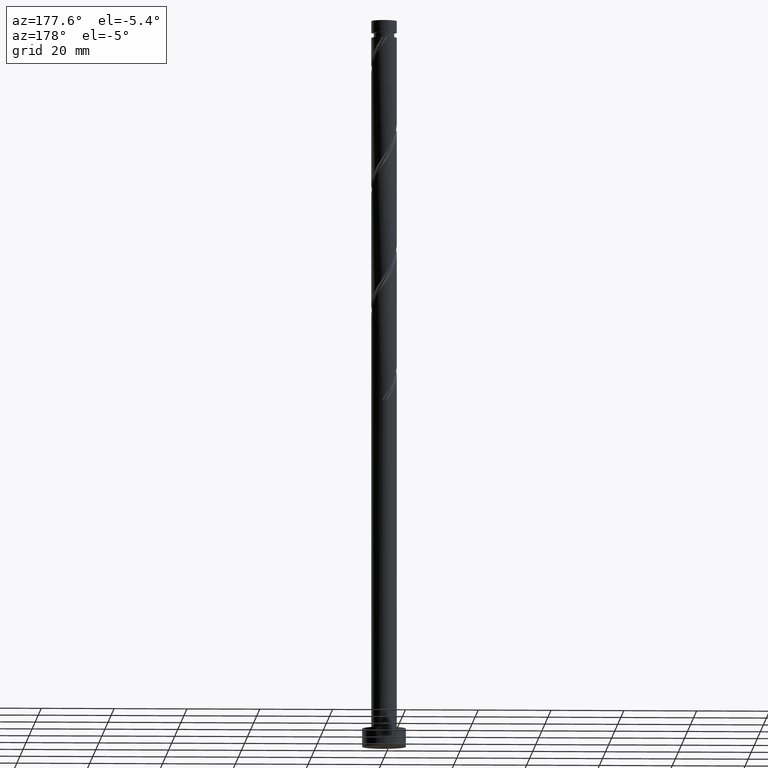
[diagram: clean part render]
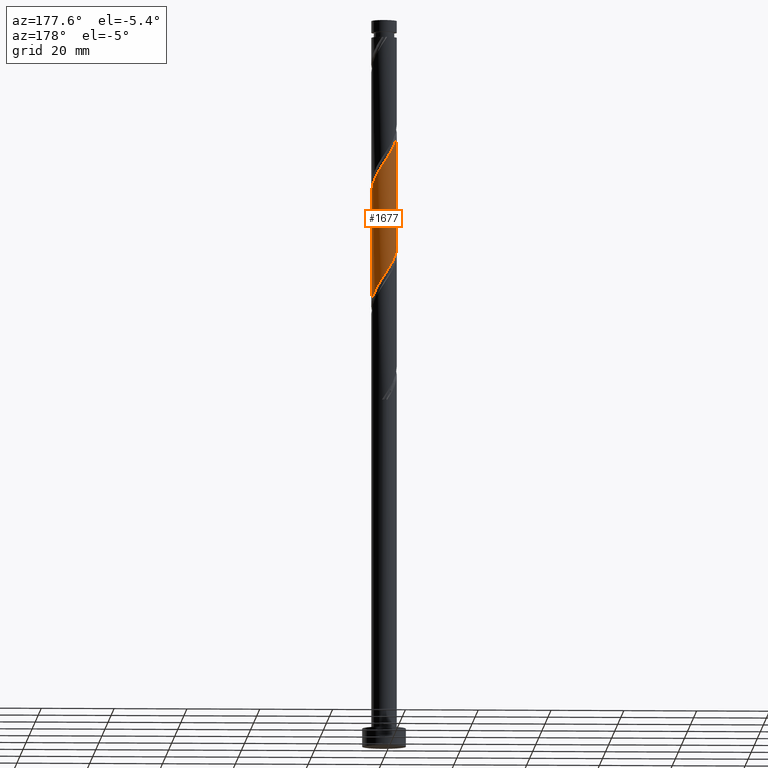
[diagram: same view with one face highlighted and labeled with its STEP entity id]
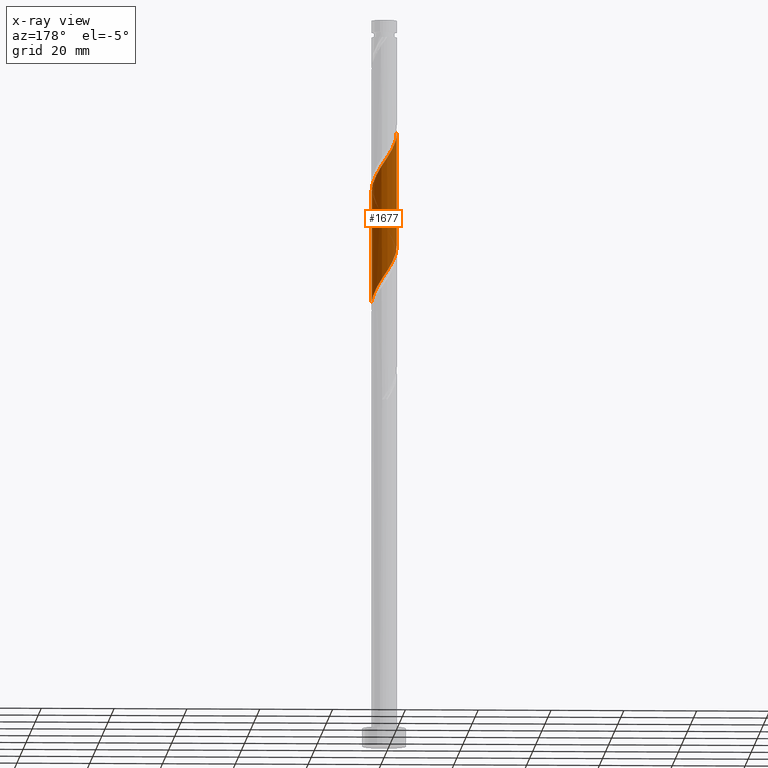
[diagram: x-ray of the same camera — body ghosted, the highlighted face saturated]
A machine part, auxiliary view. The second image highlights one B-rep face of the part: STEP entity #1677.
The next image is the same camera in x-ray: the body ghosted, the highlighted face saturated — about 0% of this face is hidden behind the body in this view.
In plain terms, the highlighted cylindrical surface (edge-blend (fillet) strip) has radius 3.5 mm, axis along (-0, -0, -1).
Its self-contained STEP definition (entity closure, byte-faithful):
#8 = CARTESIAN_POINT ( 'NONE',  ( 1.932882604688401118, 2.917869914251323138, 157.8863959641132340 ) ) ;
#43 = EDGE_CURVE ( 'NONE', #1611, #297, #1145, .T. ) ;
#55 = CARTESIAN_POINT ( 'NONE',  ( 3.500000000000000444, 4.516042901973274995E-15, 121.4499626193233155 ) ) ;
#120 = CARTESIAN_POINT ( 'NONE',  ( 3.500000000000004441, 5.532900244139408950E-16, 152.6561626422365237 ) ) ;
#125 = CARTESIAN_POINT ( 'NONE',  ( -2.622221531993306876, 2.318179077886495243, 134.2752848530021765 ) ) ;
#168 = CARTESIAN_POINT ( 'NONE',  ( 3.493390773024163121, 0.2149904810675252742, 121.7752848530021197 ) ) ;
#233 = EDGE_CURVE ( 'NONE', #572, #297, #430, .T. ) ;
#236 = CYLINDRICAL_SURFACE ( 'NONE', #1384, 3.500000000000000000 ) ;
#257 = CARTESIAN_POINT ( 'NONE',  ( -2.318179077886497019, 2.622221531993310872, 164.8308404085577479 ) ) ;
#266 = CARTESIAN_POINT ( 'NONE',  ( 2.927415597451915374, 1.972957063972127667, 155.8030626307798912 ) ) ;
#270 = ORIENTED_EDGE ( 'NONE', *, *, #1411, .F. ) ;
#294 = CARTESIAN_POINT ( 'NONE',  ( -3.493390773024166229, 0.2149904810675284106, 168.9975070752244051 ) ) ;
#297 = VERTEX_POINT ( 'NONE', #574 ) ;
#378 = DIRECTION ( 'NONE',  ( -0.000000000000000000, -0.000000000000000000, -1.000000000000000000 ) ) ;
#410 = CARTESIAN_POINT ( 'NONE',  ( -3.500000000000004441, -1.600054935467342436E-15, 169.3228293089032377 ) ) ;
#422 = CARTESIAN_POINT ( 'NONE',  ( -3.465086739234110702, 0.6749041013849228499, 168.3030626307798912 ) ) ;
#430 =( BOUNDED_CURVE ( )  B_SPLINE_CURVE ( 2, ( #826, #673, #1188, #1059, #1457, #1066, #125, #1740, #545, #1474, #1119, #1638, #970, #439, #750, #997, #585, #1107, #856, #1270, #458, #1501, #865, #1126, #168, #1667, #55 ),
 .UNSPECIFIED., .F., .T. ) 
 B_SPLINE_CURVE_WITH_KNOTS ( ( 3, 2, 2, 2, 2, 2, 2, 2, 2, 2, 2, 2, 2, 3 ),
 ( 0.6795317669814465722, 0.6875000000000000000, 0.6979166666666666297, 0.7083333333333333703, 0.7187500000000000000, 0.7291666666666666297, 0.7395833333333333703, 0.7500000000000000000, 0.7604166666666666297, 0.7708333333333333703, 0.7812500000000000000, 0.7916666666666666297, 0.8020833333333333703, 0.8045317669814463502 ),
 .UNSPECIFIED. ) 
 CURVE ( )  GEOMETRIC_REPRESENTATION_ITEM ( )  RATIONAL_B_SPLINE_CURVE ( ( 0.9062941362546423907, 0.9031415850403470280, 0.9090909090909222723, 0.9013135103398406400, 0.9090909090909222723, 0.9013135103398406400, 0.9090909090909222723, 0.9013135103398406400, 0.9090909090909222723, 0.9013135103398406400, 0.9090909090909222723, 0.9013135103398406400, 0.9090909090909222723, 0.9013135103398406400, 0.9090909090909222723, 0.9013135103398406400, 0.9090909090909222723, 0.9013135103398406400, 0.9090909090909222723, 0.9013135103398406400, 0.9090909090909222723, 0.9013135103398406400, 0.9090909090909222723, 0.9013135103398406400, 0.9090909090909222723, 0.9072628343904159953, 0.9062941362546426127 ) ) 
 REPRESENTATION_ITEM ( '' )  );
#439 = CARTESIAN_POINT ( 'NONE',  ( 0.2449231392498675275, 3.521694806814218204, 129.4141737418910054 ) ) ;
#443 = CARTESIAN_POINT ( 'NONE',  ( 1.111820922113509580, 3.318712737967945969, 159.2752848530021765 ) ) ;
#458 = CARTESIAN_POINT ( 'NONE',  ( 2.917869914251320029, 1.932882604688396011, 124.5530626307799196 ) ) ;
#466 = VERTEX_POINT ( 'NONE', #1019 ) ;
#493 = ORIENTED_EDGE ( 'NONE', *, *, #1173, .F. ) ;
#540 = CARTESIAN_POINT ( 'NONE',  ( 1.548737742842093867, 3.172338736701780793, 158.5808404085576626 ) ) ;
#545 = CARTESIAN_POINT ( 'NONE',  ( -1.932882604688397121, 2.917869914251320029, 132.8863959641132624 ) ) ;
#562 = CARTESIAN_POINT ( 'NONE',  ( -2.663401091800863263, 2.317027466534706370, 165.5252848530021481 ) ) ;
#572 = VERTEX_POINT ( 'NONE', #1510 ) ;
#574 = CARTESIAN_POINT ( 'NONE',  ( 3.500000000000000000, 4.516042901973274995E-15, 121.4499626193233155 ) ) ;
#585 = CARTESIAN_POINT ( 'NONE',  ( 1.560508168335767332, 3.132860395318844748, 127.3308404085577195 ) ) ;
#605 = DIRECTION ( 'NONE',  ( -0.000000000000000000, -0.000000000000000000, -1.000000000000000000 ) ) ;
#664 = CARTESIAN_POINT ( 'NONE',  ( -3.500000000000000000, 0.000000000000000000, 200.0000000000000000 ) ) ;
#673 = CARTESIAN_POINT ( 'NONE',  ( -3.499999999999998224, 0.3517632353407371681, 137.5832029168007011 ) ) ;
#688 = CARTESIAN_POINT ( 'NONE',  ( -1.560508168335767554, 3.132860395318850522, 163.4419515196688337 ) ) ;
#692 = LINE ( 'NONE', #664, #1075 ) ;
#698 = CARTESIAN_POINT ( 'NONE',  ( -1.972957063972129887, 2.927415597451914042, 164.1363959641132340 ) ) ;
#750 = CARTESIAN_POINT ( 'NONE',  ( 0.6964912059746359851, 3.429999999999999272, 128.7197292974466052 ) ) ;
#826 = CARTESIAN_POINT ( 'NONE',  ( -3.500000000000000000, 4.411366410867935127E-15, 138.1166292859899727 ) ) ;
#856 = CARTESIAN_POINT ( 'NONE',  ( 2.318179077886495687, 2.622221531993305543, 125.9419515196688053 ) ) ;
#865 = CARTESIAN_POINT ( 'NONE',  ( 3.318712737967942861, 1.111820922113503141, 123.1641737418910196 ) ) ;
#901 = FACE_OUTER_BOUND ( 'NONE', #1520, .T. ) ;
#938 = VECTOR ( 'NONE', #605, 1000.000000000000000 ) ;
#947 = CARTESIAN_POINT ( 'NONE',  ( -0.6964912059746348749, 3.430000000000004601, 162.0530626307799764 ) ) ;
#958 = CARTESIAN_POINT ( 'NONE',  ( 3.132860395318851410, 1.560508168335765555, 155.1086181863355478 ) ) ;
#967 = CARTESIAN_POINT ( 'NONE',  ( -3.500000000000004885, 0.1075968308018519920, 169.1596656208750744 ) ) ;
#970 = CARTESIAN_POINT ( 'NONE',  ( -0.2149904810675269118, 3.493390773024163121, 130.1086181863354625 ) ) ;
#990 = CARTESIAN_POINT ( 'NONE',  ( 3.500000000000000000, 4.286263797015736595E-16, 200.0000000000000000 ) ) ;
#997 = CARTESIAN_POINT ( 'NONE',  ( 1.148059272699406774, 3.338305193185780340, 128.0252848530021481 ) ) ;
#1019 = CARTESIAN_POINT ( 'NONE',  ( -3.500000000000004441, -1.600054935467342436E-15, 169.3228293089032377 ) ) ;
#1043 = CARTESIAN_POINT ( 'NONE',  ( 0.000000000000000000, 0.000000000000000000, 200.0000000000000000 ) ) ;
#1059 = CARTESIAN_POINT ( 'NONE',  ( -3.338305193185781672, 1.148059272699403222, 136.3586181863354625 ) ) ;
#1066 = CARTESIAN_POINT ( 'NONE',  ( -2.927415597451910045, 1.972957063972128333, 134.9697292974466052 ) ) ;
#1068 = CARTESIAN_POINT ( 'NONE',  ( -0.2449231392498637250, 3.521694806814221756, 161.3586181863354341 ) ) ;
#1075 = VECTOR ( 'NONE', #1088, 1000.000000000000000 ) ;
#1088 = DIRECTION ( 'NONE',  ( -0.000000000000000000, -0.000000000000000000, -1.000000000000000000 ) ) ;
#1092 = CARTESIAN_POINT ( 'NONE',  ( 0.6749041013849248483, 3.465086739234110258, 159.9697292974465483 ) ) ;
#1107 = CARTESIAN_POINT ( 'NONE',  ( 1.972957063972129665, 2.927415597451909157, 126.6363959641132908 ) ) ;
#1113 = CARTESIAN_POINT ( 'NONE',  ( 3.430000000000004601, 0.6964912059746350970, 153.7197292974466336 ) ) ;
#1119 = CARTESIAN_POINT ( 'NONE',  ( -1.111820922113505361, 3.318712737967942861, 131.4975070752243482 ) ) ;
#1126 = CARTESIAN_POINT ( 'NONE',  ( 3.465086739234107593, 0.6749041013849192971, 122.4697292974466194 ) ) ;
#1145 = LINE ( 'NONE', #990, #938 ) ;
#1173 = EDGE_CURVE ( 'NONE', #466, #572, #692, .T. ) ;
#1175 = CARTESIAN_POINT ( 'NONE',  ( 3.500000000000004441, 5.532900244139408950E-16, 152.6561626422365237 ) ) ;
#1188 = CARTESIAN_POINT ( 'NONE',  ( -3.429999999999999272, 0.6964912059746354300, 137.0530626307799196 ) ) ;
#1219 = CARTESIAN_POINT ( 'NONE',  ( 2.622221531993312205, 2.318179077886495687, 156.4975070752243766 ) ) ;
#1241 = ORIENTED_EDGE ( 'NONE', *, *, #43, .T. ) ;
#1257 =( BOUNDED_CURVE ( )  B_SPLINE_CURVE ( 2, ( #120, #1338, #1113, #1358, #958, #266, #1219, #1655, #8, #540, #443, #1092, #1462, #1068, #947, #1633, #688, #698, #257, #562, #1744, #1624, #1509, #422, #294, #967, #410 ),
 .UNSPECIFIED., .F., .T. ) 
 B_SPLINE_CURVE_WITH_KNOTS ( ( 3, 2, 2, 2, 2, 2, 2, 2, 2, 2, 2, 2, 2, 3 ),
 ( 0.4295317669814462391, 0.4375000000000000000, 0.4479166666666666297, 0.4583333333333333703, 0.4687500000000000000, 0.4791666666666666297, 0.4895833333333333703, 0.5000000000000000000, 0.5104166666666667407, 0.5208333333333332593, 0.5312500000000000000, 0.5416666666666667407, 0.5520833333333332593, 0.5545317669814463502 ),
 .UNSPECIFIED. ) 
 CURVE ( )  GEOMETRIC_REPRESENTATION_ITEM ( )  RATIONAL_B_SPLINE_CURVE ( ( 0.9062941362546482749, 0.9031415850403525791, 0.9090909090909279344, 0.9013135103398465242, 0.9090909090909279344, 0.9013135103398465242, 0.9090909090909279344, 0.9013135103398465242, 0.9090909090909279344, 0.9013135103398465242, 0.9090909090909279344, 0.9013135103398465242, 0.9090909090909279344, 0.9013135103398465242, 0.9090909090909279344, 0.9013135103398465242, 0.9090909090909279344, 0.9013135103398465242, 0.9090909090909279344, 0.9013135103398465242, 0.9090909090909279344, 0.9013135103398465242, 0.9090909090909279344, 0.9013135103398465242, 0.9090909090909279344, 0.9072628343904216575, 0.9062941362546482749 ) ) 
 REPRESENTATION_ITEM ( '' )  );
#1270 = CARTESIAN_POINT ( 'NONE',  ( 2.663401091800862375, 2.317027466534702818, 125.2475070752243624 ) ) ;
#1338 = CARTESIAN_POINT ( 'NONE',  ( 3.500000000000004885, 0.3517632353407192380, 153.1895890114257952 ) ) ;
#1358 = CARTESIAN_POINT ( 'NONE',  ( 3.338305193185786557, 1.148059272699402777, 154.4141737418909770 ) ) ;
#1360 = ORIENTED_EDGE ( 'NONE', *, *, #233, .F. ) ;
#1384 = AXIS2_PLACEMENT_3D ( 'NONE', #1043, #378, #1587 ) ;
#1411 = EDGE_CURVE ( 'NONE', #1611, #466, #1257, .T. ) ;
#1457 = CARTESIAN_POINT ( 'NONE',  ( -3.132860395318845192, 1.560508168335765999, 135.6641737418910338 ) ) ;
#1462 = CARTESIAN_POINT ( 'NONE',  ( 0.2149904810675306865, 3.493390773024166229, 160.6641737418910338 ) ) ;
#1474 = CARTESIAN_POINT ( 'NONE',  ( -1.548737742842089427, 3.172338736701778128, 132.1919515196688053 ) ) ;
#1501 = CARTESIAN_POINT ( 'NONE',  ( 3.172338736701779016, 1.548737742842087428, 123.8586181863354767 ) ) ;
#1509 = CARTESIAN_POINT ( 'NONE',  ( -3.318712737967946413, 1.111820922113508248, 167.6086181863354909 ) ) ;
#1510 = CARTESIAN_POINT ( 'NONE',  ( -3.500000000000000000, 4.411366410867935127E-15, 138.1166292859899727 ) ) ;
#1520 = EDGE_LOOP ( 'NONE', ( #270, #1241, #1360, #493 ) ) ;
#1587 = DIRECTION ( 'NONE',  ( -1.000000000000000000, 0.000000000000000000, 0.000000000000000000 ) ) ;
#1611 = VERTEX_POINT ( 'NONE', #1175 ) ;
#1624 = CARTESIAN_POINT ( 'NONE',  ( -3.172338736701781237, 1.548737742842092535, 166.9141737418909770 ) ) ;
#1633 = CARTESIAN_POINT ( 'NONE',  ( -1.148059272699403888, 3.338305193185785225, 162.7475070752243198 ) ) ;
#1638 = CARTESIAN_POINT ( 'NONE',  ( -0.6749041013849211845, 3.465086739234106705, 130.8030626307798912 ) ) ;
#1655 = CARTESIAN_POINT ( 'NONE',  ( 2.317027466534709035, 2.663401091800861487, 157.1919515196687769 ) ) ;
#1667 = CARTESIAN_POINT ( 'NONE',  ( 3.500000000000000888, 0.1075968308018528663, 121.6131263073514504 ) ) ;
#1677 = ADVANCED_FACE ( 'NONE', ( #901 ), #236, .T. ) ;
#1740 = CARTESIAN_POINT ( 'NONE',  ( -2.317027466534702818, 2.663401091800861487, 133.5808404085576910 ) ) ;
#1744 = CARTESIAN_POINT ( 'NONE',  ( -2.917869914251323582, 1.932882604688400452, 166.2197292974466052 ) ) ;